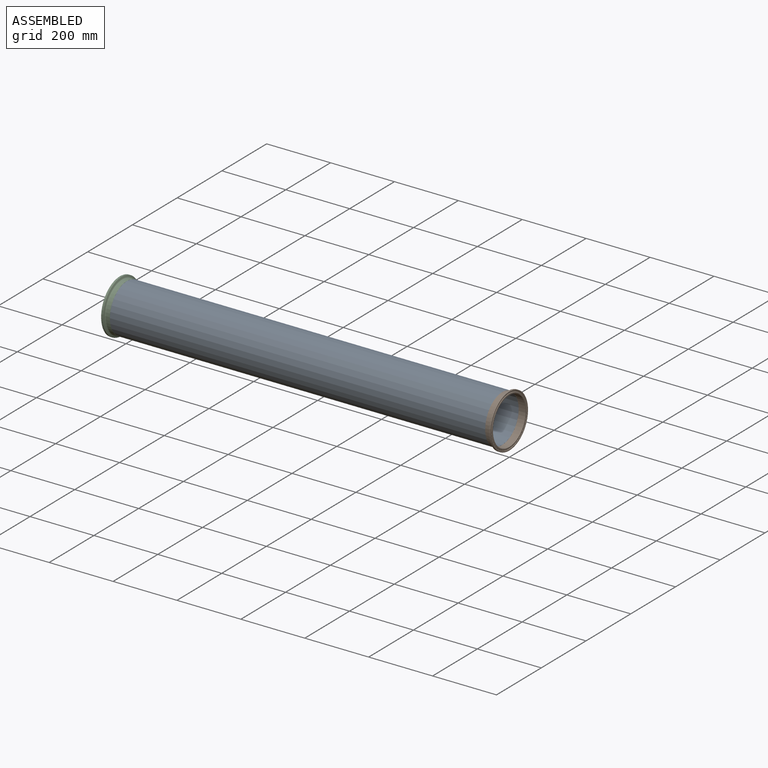
[diagram: assembled view]
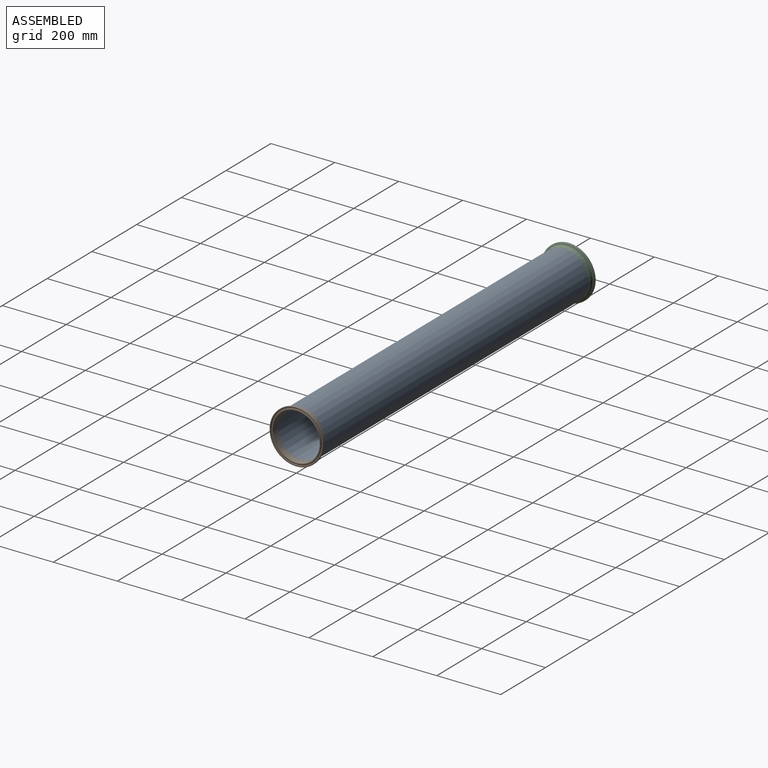
[diagram: assembled view, second angle]
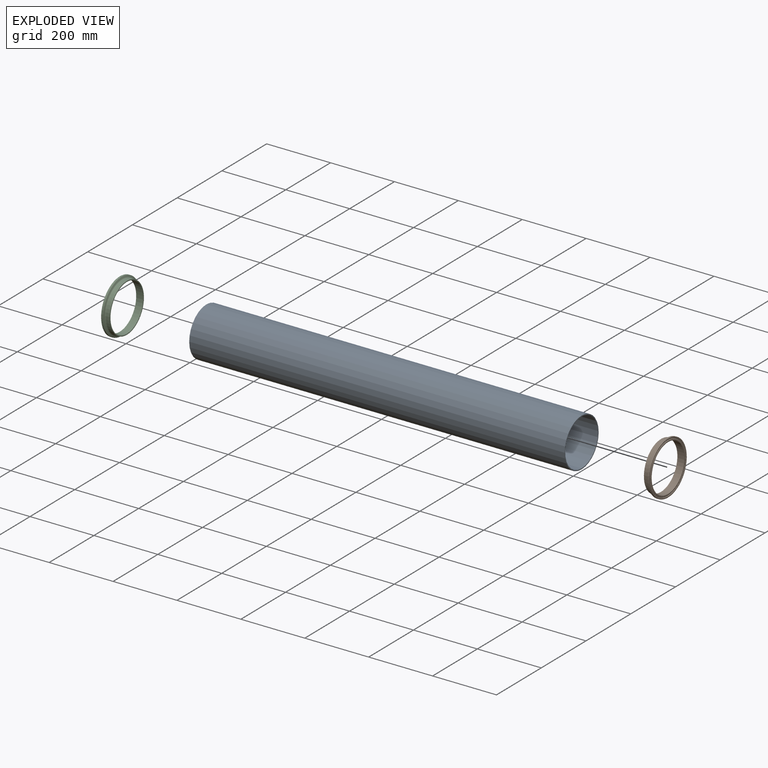
[diagram: exploded view]
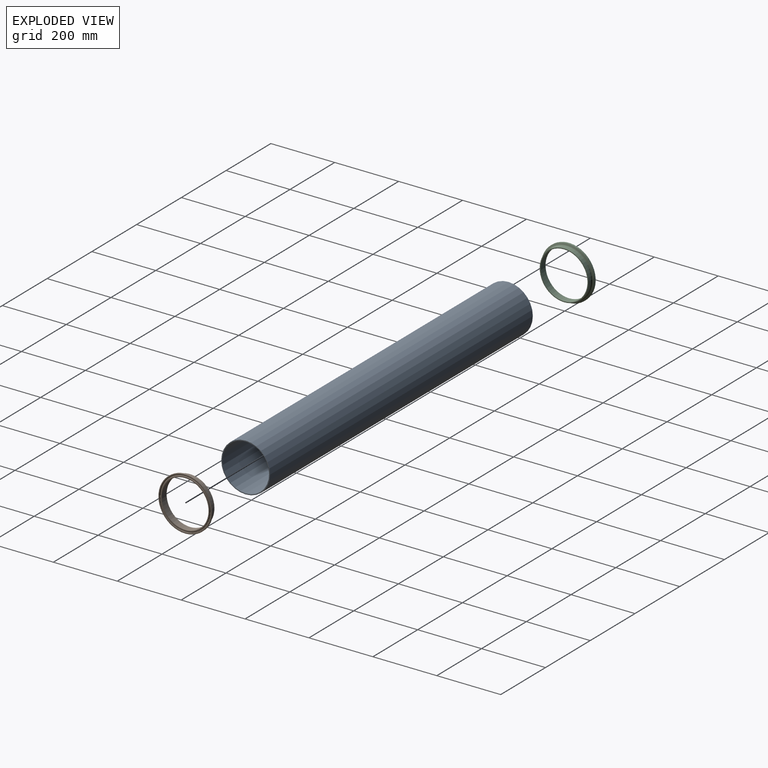
[diagram: exploded view, second angle]
ASSEMBLY  parts=3 mates=2
PART A: 4 faces, bbox 152.4x152.4x1174.8 mm
  f0: cylinder r=73.43mm len=1174.75mm, axis (0,0,-1), area 542009.8mm2, adj f2,f3
  f1: cylinder r=76.2mm len=1174.75mm, axis (0,0,-1), area 562445.3mm2, adj f2,f3
  f2: plane 152.4x152.4mm, normal (0,0,1), area 1301.5mm2, adj f0,f1
  f3: plane 152.4x152.4mm, normal (0,0,-1), area 1301.5mm2, adj f0,f1
PART B: 13 faces, bbox 174.1x22.2x174.1 mm
  f0: cylinder r=83.44mm len=166.88mm, axis (0,-1,0), area 2929.6mm2, adj f1,f10
  f1: cone r=78.29mm half-angle=70deg, axis (0,-1,0), area 2784.5mm2, adj f0,f2
  f2: torus R=79.38mm, axis (0,-1,0), area 1875mm2, adj f1,f3
  f3: cylinder r=76.2mm len=152.4mm, axis (0,-1,0), area 5639.6mm2, adj f2,f12
  f4: cylinder r=73.43mm len=146.86mm, axis (0,-1,0), area 10254.2mm2, adj f11,f12
  f5: torus R=76.44mm, axis (0,-1,0), area 444.6mm2, adj f6,f11
  f6: cone r=77.34mm half-angle=23deg, axis (0,1,0), area 207.3mm2, adj f5,f7
  f7: torus R=78.44mm, axis (0,-1,0), area 1376mm2, adj f6,f8
  f8: cone r=79.7mm half-angle=23deg, axis (0,-1,0), area 213.6mm2, adj f7,f9
  f9: torus R=80.43mm, axis (0,-1,0), area 462.9mm2, adj f8,f10
  f10: plane 166.88x166.88mm, normal (0,-1,0), area 1551.2mm2, adj f0,f9
  f11: plane 152.89x152.89mm, normal (0,-1,0), area 1418.8mm2, adj f4,f5
  f12: plane 152.4x152.4mm, normal (0,1,0), area 1301.5mm2, adj f3,f4
PART C: same geometry as B
PLACE A rot(axis=(0,1,0),90deg) t=(-1196.98,0,0)mm
PLACE B rot(axis=(-0.58,0.58,0.58),120deg) t=(0,0,0)mm
PLACE C rot(axis=(0.58,0.58,-0.58),120deg) t=(-1219.2,0,0)mm
MATE fastened A.f0 <-> C.f0  axis (-1,0,0) through (-1196.98,0,0)mm
MATE fastened A.f0 <-> B.f0  axis (1,0,0) through (-22.23,0,0)mm
